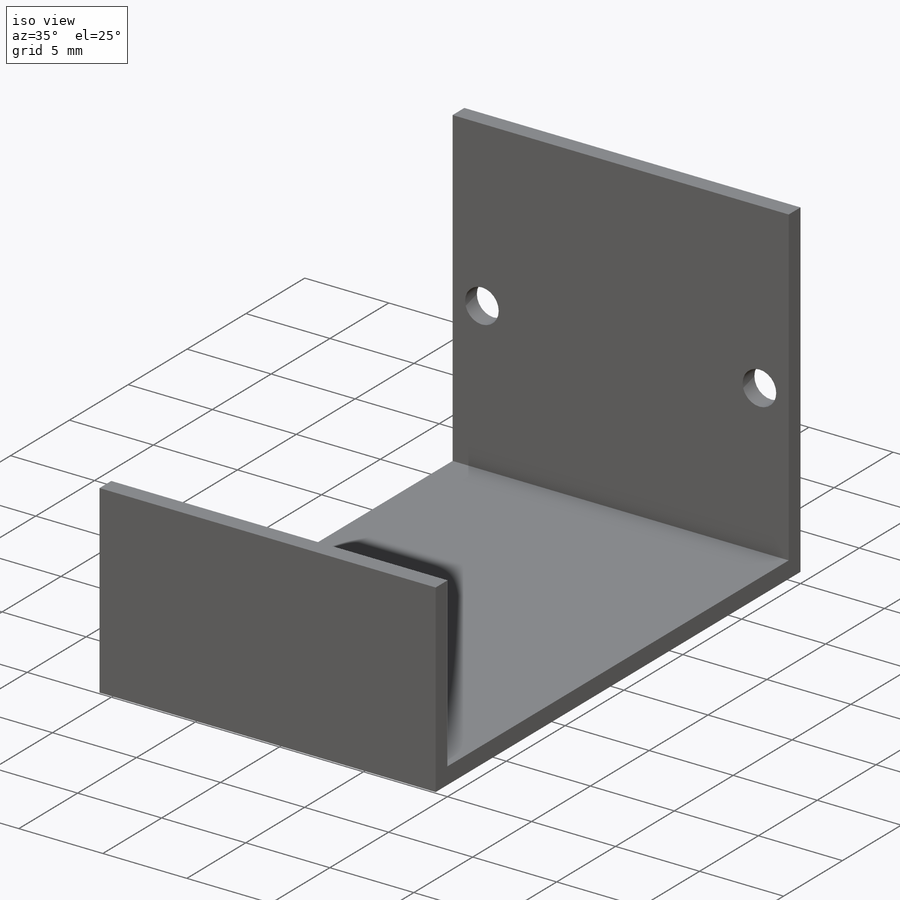
[diagram: iso view]
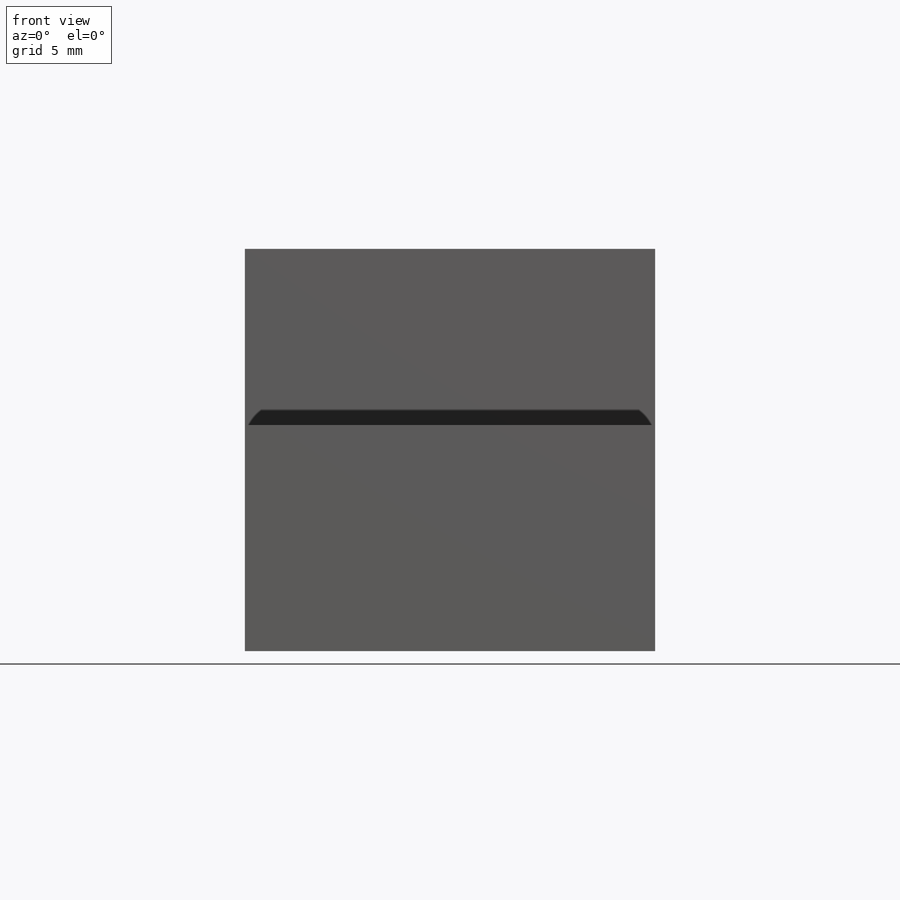
[diagram: front view]
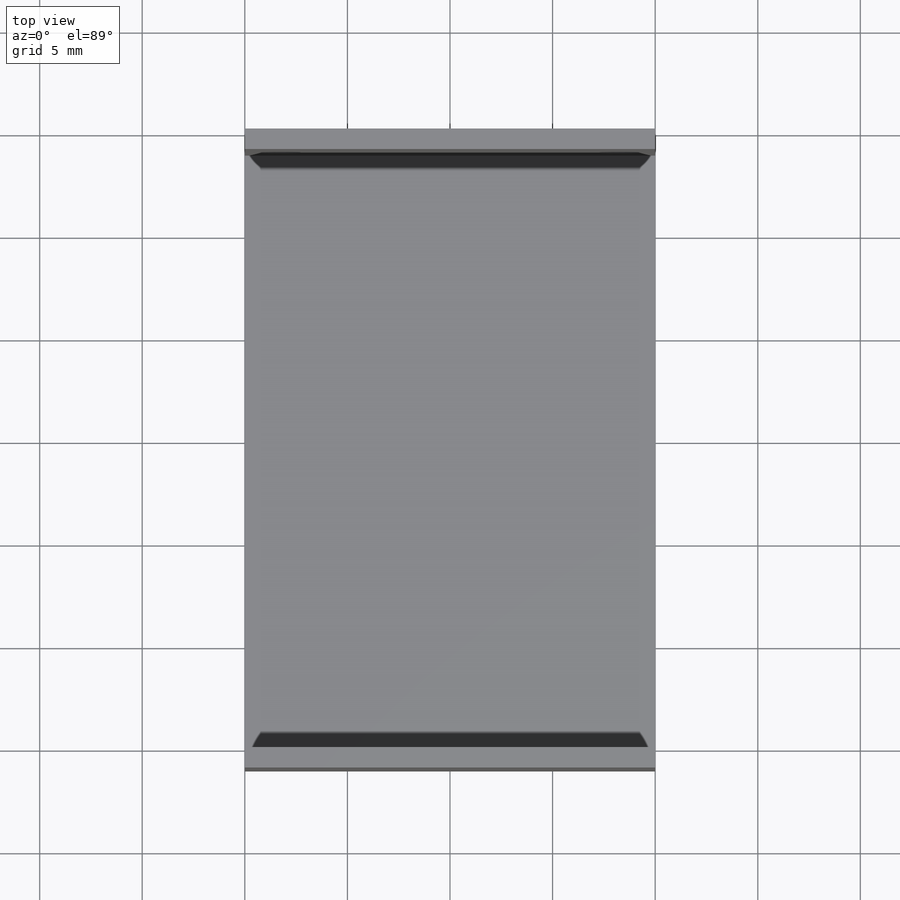
[diagram: top view]
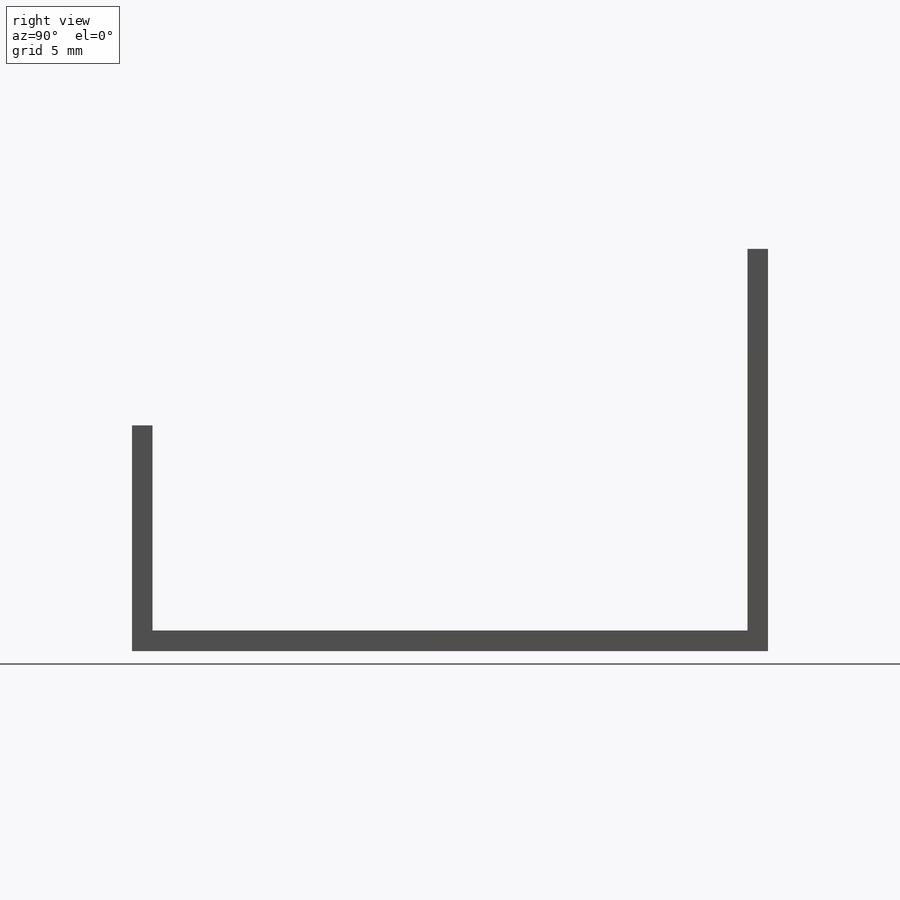
[diagram: right view]
SOLIDWORKS PART (.sldprt)
format: sldprt  version: not decoded by parser v0  size: 181,248 bytes
history: native  units: mm
features: sketch x3, extrude x3, material x1 (+13 scaffold rows collapsed)
feature tree (20):
  scaffold x13  (default folders/planes/origin — collapsed)
  material  "Material <not specified>"
  sketch  "Sketch1"  dims[c1.D3=2.0mm c1.D4=2.0mm c1.D5=2.0mm c2.D5=2.0mm c3.D5=2.0mm c3.D6=2.0mm c3.D3=2.0mm c3.D4=2.0mm c4.D5=2.0mm c5.D5=2.0mm c5.D1=20.0mm c5.D2=19.6mm c6.D5=14.512mm c6.D6=7.256mm c7.D5=14.512mm c7.D6=7.256mm]
  extrude  "Boss-Extrude1"  Depth=1mm
  sketch  "Sketch2"  dims[D1=1.0mm]
  extrude  "Boss-Extrude2"  Depth=30mm
  sketch  "Sketch3"  dims[D1=1.0mm]
  extrude  "Boss-Extrude3"  Depth=10mm
decode coverage: 6 of 6 modeling features carry decoded parameters
note: suppression state not decoded; provenance and decode notes live in map.json
